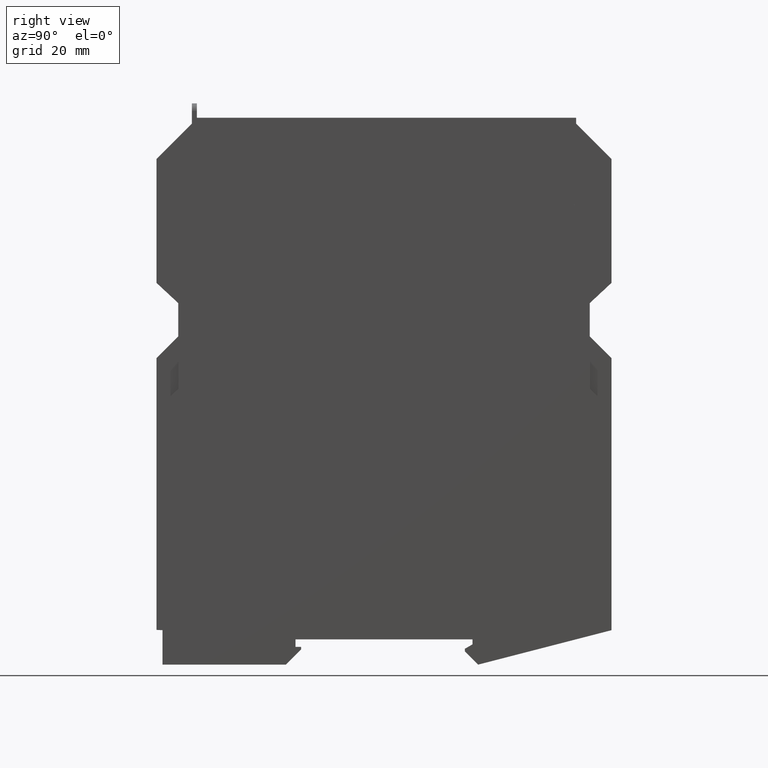
[diagram: clean part render]
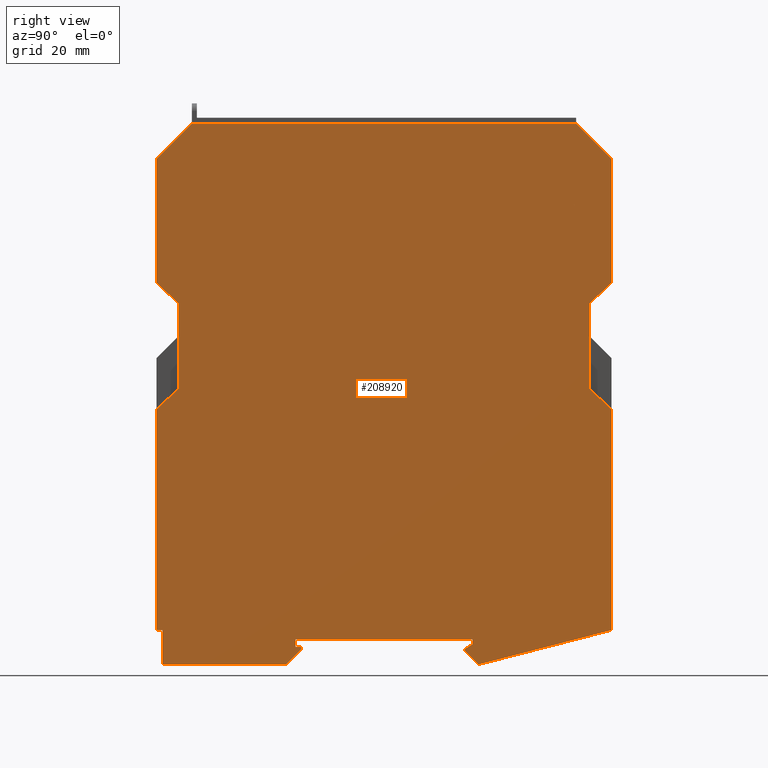
[diagram: same view with one face highlighted and labeled with its STEP entity id]
A machine part, right view. The second image highlights one B-rep face of the part: STEP entity #208920.
In plain terms, the highlighted planar face has unit normal (1, 0, 0).
Its self-contained STEP definition (entity closure, byte-faithful):
#36490=CARTESIAN_POINT('',(11.3106006933362,41.8487639465201,
131.000000000001));
#36500=VERTEX_POINT('',#36490);
#36530=CARTESIAN_POINT('',(11.3106006933362,41.8487639465201,0.));
#36540=DIRECTION('',(0.,0.,1.));
#36550=VECTOR('',#36540,1.);
#36560=LINE('',#36530,#36550);
#36570=CARTESIAN_POINT('',(11.3106006933362,41.8487639465201,
155.500000000001));
#36580=VERTEX_POINT('',#36570);
#36590=EDGE_CURVE('',#36500,#36580,#36560,.T.);
#39990=CARTESIAN_POINT('',(11.3106006933362,37.54876394652,
127.000000000001));
#40000=VERTEX_POINT('',#39990);
#40030=CARTESIAN_POINT('',(11.3106006933362,0.,92.0709172590523));
#40040=DIRECTION('',(0.,0.732186738163083,0.681103942477288));
#40050=VECTOR('',#40040,1.);
#40060=LINE('',#40030,#40050);
#40070=EDGE_CURVE('',#40000,#36500,#40060,.T.);
#45440=CARTESIAN_POINT('',(11.3106006933362,-48.15123605348,
155.499999999925));
#45450=VERTEX_POINT('',#45440);
#45480=CARTESIAN_POINT('',(11.3106006933362,-48.15123605348,0.));
#45490=DIRECTION('',(0.,0.,-1.));
#45500=VECTOR('',#45490,1.);
#45510=LINE('',#45480,#45500);
#45520=CARTESIAN_POINT('',(11.3106006933362,-48.15123605348,
131.000000000001));
#45530=VERTEX_POINT('',#45520);
#45540=EDGE_CURVE('',#45450,#45530,#45510,.T.);
#49210=CARTESIAN_POINT('',(11.3106006933362,-46.9512360534802,
55.5000000000012));
#49220=VERTEX_POINT('',#49210);
#49250=CARTESIAN_POINT('',(11.3106006933362,0.,55.5000000000012));
#49260=DIRECTION('',(0.,1.,0.));
#49270=VECTOR('',#49260,1.);
#49280=LINE('',#49250,#49270);
#49290=CARTESIAN_POINT('',(11.3106006933362,-22.5512360534807,
55.5000000000012));
#49300=VERTEX_POINT('',#49290);
#49310=EDGE_CURVE('',#49220,#49300,#49280,.T.);
#51690=CARTESIAN_POINT('',(11.3106006933362,-46.9512360534802,
62.3039651198429));
#51700=VERTEX_POINT('',#51690);
#51730=CARTESIAN_POINT('',(11.3106006933362,-46.9512360534802,0.));
#51740=DIRECTION('',(0.,0.,-1.));
#51750=VECTOR('',#51740,1.);
#51760=LINE('',#51730,#51750);
#51770=EDGE_CURVE('',#51700,#49220,#51760,.T.);
#54530=CARTESIAN_POINT('',(11.3106006933362,-20.6512360534807,
59.0000000000012));
#54540=VERTEX_POINT('',#54530);
#54570=CARTESIAN_POINT('',(11.3106006933362,-20.6512360534807,0.));
#54580=DIRECTION('',(0.,0.,1.));
#54590=VECTOR('',#54580,1.);
#54600=LINE('',#54570,#54590);
#54610=CARTESIAN_POINT('',(11.3106006933362,-20.6512360534807,
60.5000000000012));
#54620=VERTEX_POINT('',#54610);
#54630=EDGE_CURVE('',#54540,#54620,#54600,.T.);
#54910=CARTESIAN_POINT('',(11.3106006933362,-19.5512360534807,
59.0000000000012));
#54920=VERTEX_POINT('',#54910);
#54950=CARTESIAN_POINT('',(11.3106006933362,0.,59.0000000000012));
#54960=DIRECTION('',(0.,-1.,0.));
#54970=VECTOR('',#54960,1.);
#54980=LINE('',#54950,#54970);
#54990=EDGE_CURVE('',#54920,#54540,#54980,.T.);
#55220=CARTESIAN_POINT('',(11.3106006933362,12.84876394652,
58.6339745962167));
#55230=VERTEX_POINT('',#55220);
#55260=CARTESIAN_POINT('',(11.3106006933362,12.8487639465204,0.));
#55270=DIRECTION('',(0.,6.93889390391374E-15,-1.));
#55280=VECTOR('',#55270,1.);
#55290=LINE('',#55260,#55280);
#55300=CARTESIAN_POINT('',(11.3106006933362,12.84876394652,
58.1339745962172));
#55310=VERTEX_POINT('',#55300);
#55320=EDGE_CURVE('',#55230,#55310,#55290,.T.);
#55600=CARTESIAN_POINT('',(11.3106006933362,14.34876394652,
59.5000000000012));
#55610=VERTEX_POINT('',#55600);
#55640=CARTESIAN_POINT('',(11.3106006933362,0.,51.2157372729391));
#55650=DIRECTION('',(0.,-0.866025403784429,-0.500000000000017));
#55660=VECTOR('',#55650,1.);
#55670=LINE('',#55640,#55660);
#55680=EDGE_CURVE('',#55610,#55230,#55670,.T.);
#58180=CARTESIAN_POINT('',(11.3106006933362,41.84876394652,
62.3072887580302));
#58190=VERTEX_POINT('',#58180);
#58220=CARTESIAN_POINT('',(11.3106006933362,41.8487639465178,0.));
#58230=DIRECTION('',(0.,3.54716256367738E-14,1.));
#58240=VECTOR('',#58230,1.);
#58250=LINE('',#58220,#58240);
#58260=CARTESIAN_POINT('',(11.3106006933362,41.8487639465232,
105.999999999998));
#58270=VERTEX_POINT('',#58260);
#58280=EDGE_CURVE('',#58190,#58270,#58250,.T.);
#86890=CARTESIAN_POINT('',(11.3106006933362,70.9827385427369,0.));
#86900=DIRECTION('',(0.,0.707106781186545,-0.70710678118655));
#86910=VECTOR('',#86900,1.);
#86920=LINE('',#86890,#86910);
#86930=CARTESIAN_POINT('',(11.3106006933362,15.4827385427368,
55.5000000000004));
#86940=VERTEX_POINT('',#86930);
#86950=EDGE_CURVE('',#55310,#86940,#86920,.T.);
#87200=CARTESIAN_POINT('',(11.3106006933362,0.,51.5026029554552));
#87210=DIRECTION('',(0.,0.96824930087528,0.249986582348995));
#87220=VECTOR('',#87210,1.);
#87230=LINE('',#87200,#87220);
#87240=EDGE_CURVE('',#86940,#58190,#87230,.T.);
#87440=CARTESIAN_POINT('',(11.3106006933362,0.,60.5000000000012));
#87450=DIRECTION('',(0.,1.,0.));
#87460=VECTOR('',#87450,1.);
#87470=LINE('',#87440,#87460);
#87480=CARTESIAN_POINT('',(11.3106006933362,14.34876394652,
60.5000000000012));
#87490=VERTEX_POINT('',#87480);
#87500=EDGE_CURVE('',#54620,#87490,#87470,.T.);
#87750=CARTESIAN_POINT('',(11.3106006933362,14.34876394652,0.));
#87760=DIRECTION('',(0.,0.,-1.));
#87770=VECTOR('',#87760,1.);
#87780=LINE('',#87750,#87770);
#87790=EDGE_CURVE('',#87490,#55610,#87780,.T.);
#87990=CARTESIAN_POINT('',(11.3106006933362,-78.0512360534819,0.));
#88000=DIRECTION('',(0.,0.707106781186547,0.707106781186548));
#88010=VECTOR('',#88000,1.);
#88020=LINE('',#87990,#88010);
#88030=CARTESIAN_POINT('',(11.3106006933362,-19.5512360534807,
58.5000000000012));
#88040=VERTEX_POINT('',#88030);
#88050=EDGE_CURVE('',#49300,#88040,#88020,.T.);
#88300=CARTESIAN_POINT('',(11.3106006933362,-19.5512360534809,0.));
#88310=DIRECTION('',(0.,3.5527136788005E-15,1.));
#88320=VECTOR('',#88310,1.);
#88330=LINE('',#88300,#88320);
#88340=EDGE_CURVE('',#88040,#54920,#88330,.T.);
#91200=CARTESIAN_POINT('',(11.3106006933362,-48.1512360534815,106.));
#91210=VERTEX_POINT('',#91200);
#91240=CARTESIAN_POINT('',(11.3106006933362,-48.1512360534778,0.));
#91250=DIRECTION('',(0.,3.54716256367738E-14,-1.));
#91260=VECTOR('',#91250,1.);
#91270=LINE('',#91240,#91260);
#91280=CARTESIAN_POINT('',(11.3106006933362,-48.15123605348,
62.3668544549825));
#91290=VERTEX_POINT('',#91280);
#91300=EDGE_CURVE('',#91210,#91290,#91270,.T.);
#120200=CARTESIAN_POINT('',(11.3106006933362,0.,59.8433551036863));
#120210=DIRECTION('',(0.,0.998629534754574,-0.0523359562429391));
#120220=VECTOR('',#120210,1.);
#120230=LINE('',#120200,#120220);
#120240=EDGE_CURVE('',#91290,#51700,#120230,.T.);
#154970=CARTESIAN_POINT('',(11.3106006933362,-43.85123605348,
110.000000000001));
#154980=VERTEX_POINT('',#154970);
#155010=CARTESIAN_POINT('',(11.3106006933362,0.,150.79184749161));
#155020=DIRECTION('',(0.,-0.732186738163085,-0.681103942477286));
#155030=VECTOR('',#155020,1.);
#155040=LINE('',#155010,#155030);
#155050=EDGE_CURVE('',#154980,#91210,#155040,.T.);
#155280=CARTESIAN_POINT('',(11.3106006933362,-43.85123605348,
127.000000000001));
#155290=VERTEX_POINT('',#155280);
#155320=CARTESIAN_POINT('',(11.3106006933362,-43.85123605348,0.));
#155330=DIRECTION('',(0.,0.,-1.));
#155340=VECTOR('',#155330,1.);
#155350=LINE('',#155320,#155340);
#155360=EDGE_CURVE('',#155290,#154980,#155350,.T.);
#197860=CARTESIAN_POINT('',(11.3106006933362,0.,86.2081525083918));
#197870=DIRECTION('',(0.,0.732186738163083,-0.681103942477288));
#197880=VECTOR('',#197870,1.);
#197890=LINE('',#197860,#197880);
#197900=EDGE_CURVE('',#45530,#155290,#197890,.T.);
#198860=CARTESIAN_POINT('',(11.3106006933362,37.54876394652,
110.000000000001));
#198870=VERTEX_POINT('',#198860);
#198900=CARTESIAN_POINT('',(11.3106006933362,37.54876394652,0.));
#198910=DIRECTION('',(0.,0.,1.));
#198920=VECTOR('',#198910,1.);
#198930=LINE('',#198900,#198920);
#198940=EDGE_CURVE('',#198870,#40000,#198930,.T.);
#199280=CARTESIAN_POINT('',(11.3106006933362,0.,144.92908274095));
#199290=DIRECTION('',(0.,-0.732186738163085,0.681103942477286));
#199300=VECTOR('',#199290,1.);
#199310=LINE('',#199280,#199300);
#199320=EDGE_CURVE('',#58270,#198870,#199310,.T.);
#208400=CARTESIAN_POINT('',(11.3106006933362,-41.75123605348,
111.500000000001));
#208410=DIRECTION('',(1.,0.,0.));
#208420=DIRECTION('',(0.,1.,0.));
#208430=AXIS2_PLACEMENT_3D('',#208400,#208410,#208420);
#208440=PLANE('',#208430);
#208450=ORIENTED_EDGE('',*,*,#36590,.T.);
#208460=ORIENTED_EDGE('',*,*,#40070,.T.);
#208470=ORIENTED_EDGE('',*,*,#198940,.T.);
#208480=ORIENTED_EDGE('',*,*,#199320,.T.);
#208490=ORIENTED_EDGE('',*,*,#58280,.T.);
#208500=ORIENTED_EDGE('',*,*,#87240,.T.);
#208510=ORIENTED_EDGE('',*,*,#86950,.T.);
#208520=ORIENTED_EDGE('',*,*,#55320,.T.);
#208530=ORIENTED_EDGE('',*,*,#55680,.T.);
#208540=ORIENTED_EDGE('',*,*,#87790,.T.);
#208550=ORIENTED_EDGE('',*,*,#87500,.T.);
#208560=ORIENTED_EDGE('',*,*,#54630,.T.);
#208570=ORIENTED_EDGE('',*,*,#54990,.T.);
#208580=ORIENTED_EDGE('',*,*,#88340,.T.);
#208590=ORIENTED_EDGE('',*,*,#88050,.T.);
#208600=ORIENTED_EDGE('',*,*,#49310,.T.);
#208610=ORIENTED_EDGE('',*,*,#51770,.T.);
#208620=ORIENTED_EDGE('',*,*,#120240,.T.);
#208630=ORIENTED_EDGE('',*,*,#91300,.T.);
#208640=ORIENTED_EDGE('',*,*,#155050,.T.);
#208650=ORIENTED_EDGE('',*,*,#155360,.T.);
#208660=ORIENTED_EDGE('',*,*,#197900,.T.);
#208670=ORIENTED_EDGE('',*,*,#45540,.T.);
#208680=CARTESIAN_POINT('',(11.3106006933362,-203.651236053404,0.));
#208690=DIRECTION('',(0.,-0.707106781186543,-0.707106781186552));
#208700=VECTOR('',#208690,1.);
#208710=LINE('',#208680,#208700);
#208720=CARTESIAN_POINT('',(11.3106006933362,-41.1512360534042,
162.500000000001));
#208730=VERTEX_POINT('',#208720);
#208740=EDGE_CURVE('',#208730,#45450,#208710,.T.);
#208750=ORIENTED_EDGE('',*,*,#208740,.T.);
#208760=CARTESIAN_POINT('',(11.3106006933362,0.,162.500000000001));
#208770=DIRECTION('',(0.,-1.,0.));
#208780=VECTOR('',#208770,1.);
#208790=LINE('',#208760,#208780);
#208800=CARTESIAN_POINT('',(11.3106006933362,34.8487639465192,
162.500000000002));
#208810=VERTEX_POINT('',#208800);
#208820=EDGE_CURVE('',#208810,#208730,#208790,.T.);
#208830=ORIENTED_EDGE('',*,*,#208820,.T.);
#208840=CARTESIAN_POINT('',(11.3106006933362,0.,197.348763946521));
#208850=DIRECTION('',(0.,-0.70710678118655,0.707106781186545));
#208860=VECTOR('',#208850,1.);
#208870=LINE('',#208840,#208860);
#208880=EDGE_CURVE('',#36580,#208810,#208870,.T.);
#208890=ORIENTED_EDGE('',*,*,#208880,.T.);
#208900=EDGE_LOOP('',(#208890,#208830,#208750,#208670,#208660,#208650,
#208640,#208630,#208620,#208610,#208600,#208590,#208580,#208570,#208560,
#208550,#208540,#208530,#208520,#208510,#208500,#208490,#208480,#208470,
#208460,#208450));
#208910=FACE_OUTER_BOUND('',#208900,.T.);
#208920=ADVANCED_FACE('',(#208910),#208440,.T.);